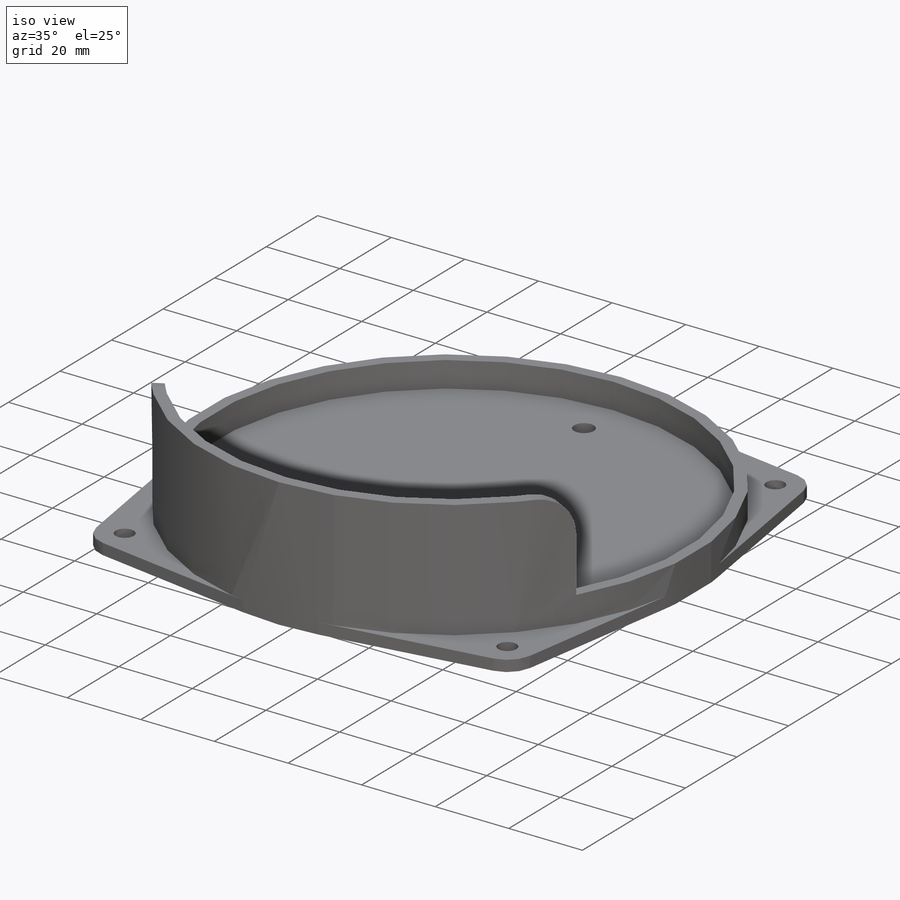
[diagram: iso view]
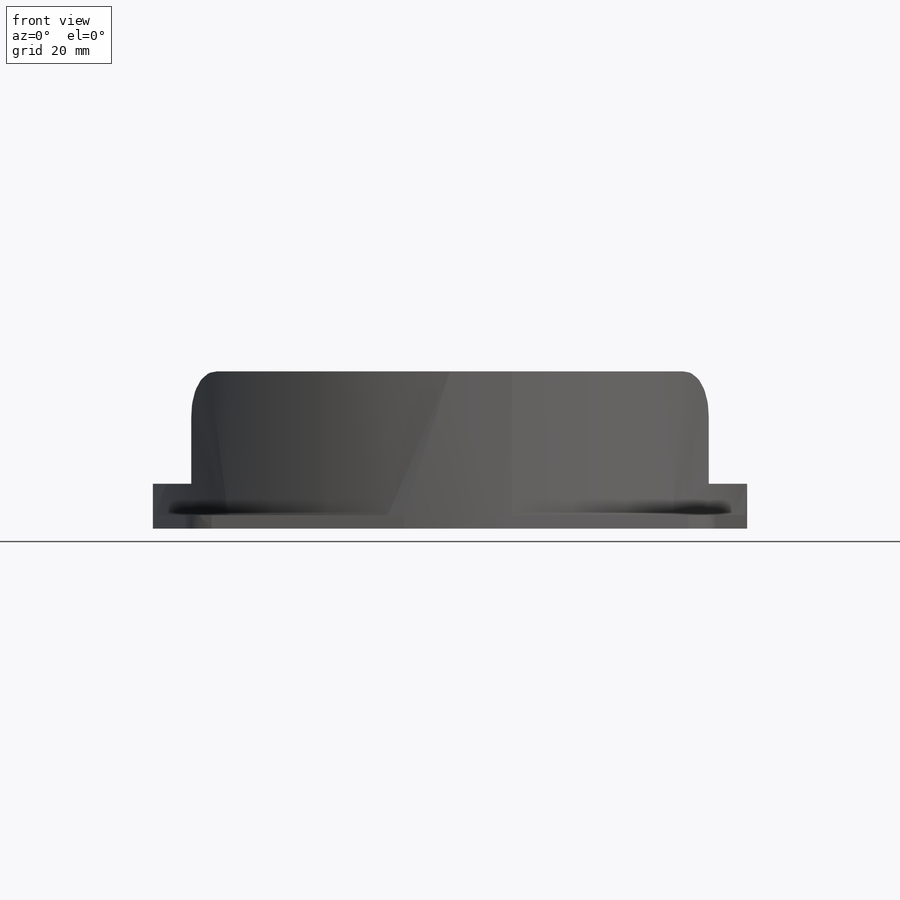
[diagram: front view]
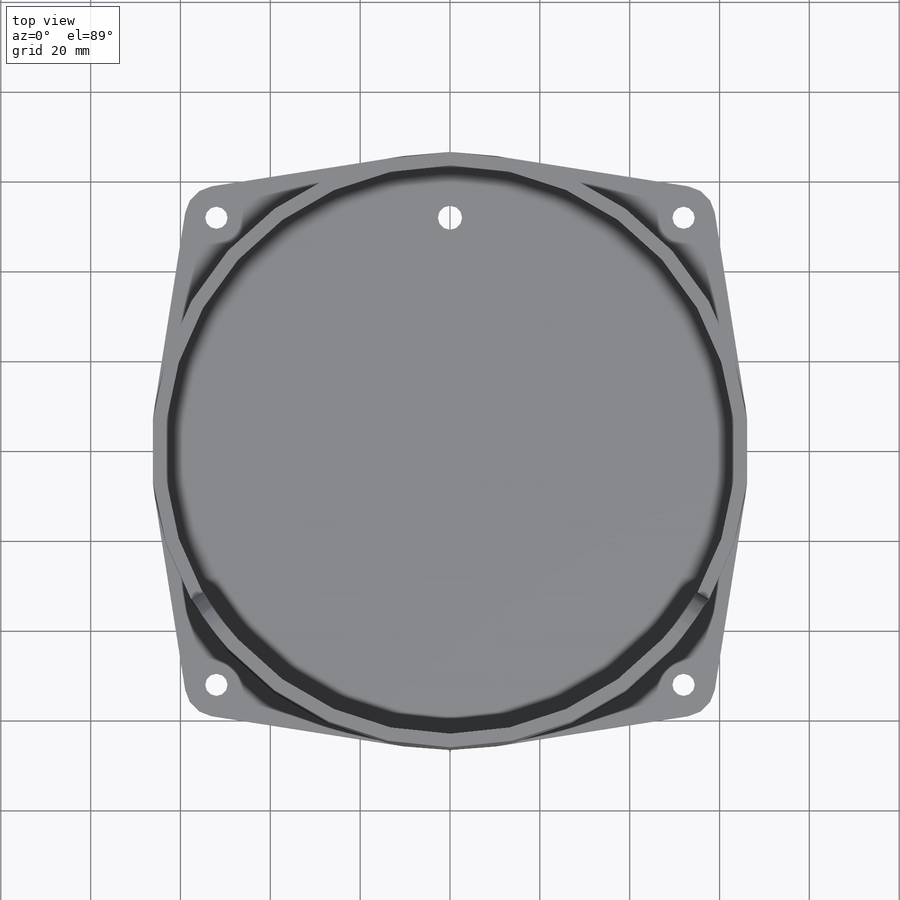
[diagram: top view]
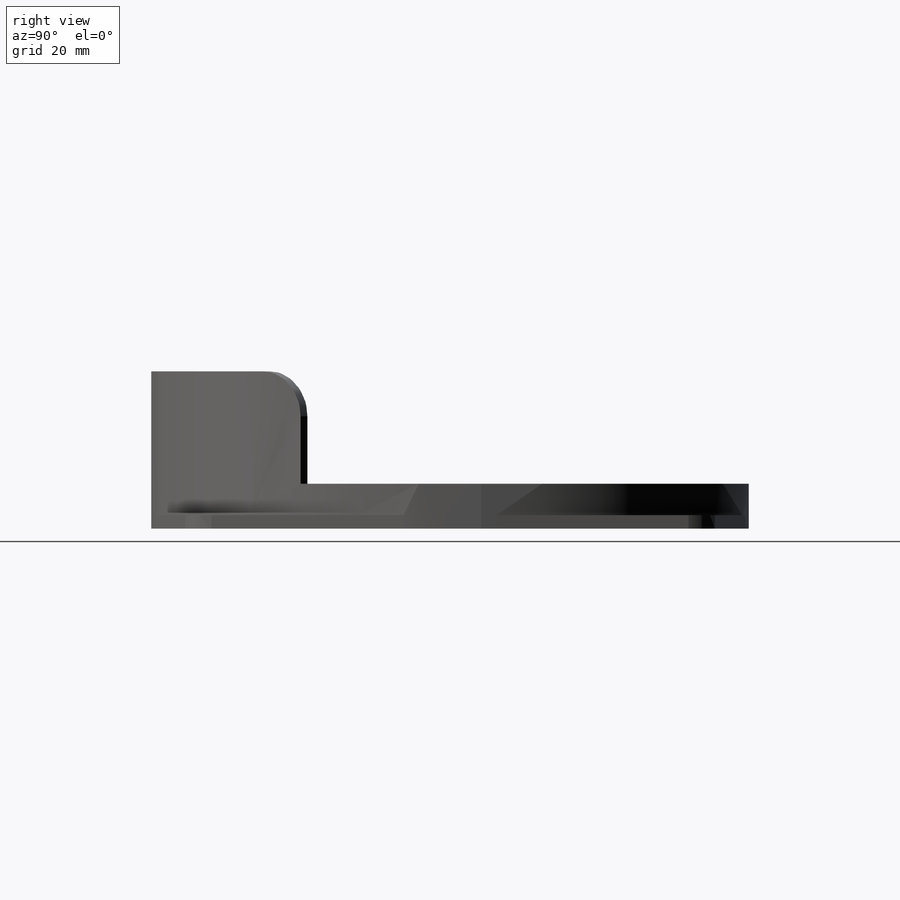
[diagram: right view]
SOLIDWORKS PART (.sldprt)
format: sldprt  version: not decoded by parser v0  size: 276,480 bytes
history: native  units: mm
features: sketch x7, extrude x2, hole x2, material x1, pattern_circular x1, fillet x1, thread x1 (+11 scaffold rows collapsed)
feature tree (26):
  scaffold x11  (default folders/planes/origin — collapsed)
  material  "6061-T6 (SS)"
  sketch  "Sketch1"  dims[c1.D1=127.0mm c2.D1=7.0mm c2.D5=3.0mm c2.D6=1.0mm c2.D7=5.0mm]
  sketch  "Sketch2"  dims[c1.D1=~45.618844mm c2.D1=60.0deg]
  extrude  "Boss-Extrude1"  Depth=32mm
  sketch  "Sketch3"  dims[c1.D1=21.0mm c1.D2=85.0mm c2.D1=10.0mm c2.D3=10.0mm c3.D1=85.0mm c3.D2=120.0mm c4.D1=~73.994278mm c5.D1=45.0deg c5.D2=~53.648647mm c6.D2=45.0deg c6.D3=52.0mm]
  extrude  "Boss-Extrude2"  Depth=3mm
  hole  "#10 Clearance Hole1"  Diameter=4.9784mm Depth=3.000025mm
  sketch  "Sketch5"
  sketch  "Sketch4"  dims[hole-wizard template sketch: 60 standard entries collapsed; hole parameters kept: c18.Thru Hole Depth=~3.000025mm]
  pattern_circular  "CirPattern1"  Count=4 Angle=360deg
  fillet  "Fillet1"  Radius=10mm
  hole  "1/4-28 Tapped Hole1"  Diameter=5.4102mm Depth=3.000025mm
  sketch  "Sketch7"  dims[D1=52.0mm]
  sketch  "Sketch8"  dims[hole-wizard template sketch: 59 standard entries collapsed; hole parameters kept: c18.Thru Tap Drill Dia.=5.4102mm c18.Thru Tap Drill Depth=~3.000025mm]
  thread  "Hole Thread1"  Diameter=6.35mm  [1 undecoded]
decode coverage: 13 of 14 modeling features carry decoded parameters
note: ~ marks probable driven/reference dimensions
note: 1 parameter value undecoded
note: suppression state not decoded; provenance and decode notes live in map.json
